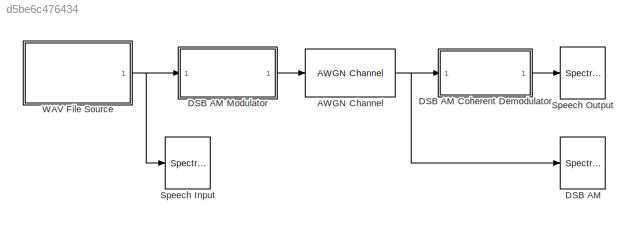
MODEL slx_d5be6c476434
KIND model
BLOCK [Reference] AWGN Channel  REF=commchan3/AWGN
Channel
  EbNodB = 10
  EsNodB = 10
  InputProcessing = Inherited (this choice will be removed - see release notes)
  Ports = [1, 1]
  Ps = 1
  SNRdB = 10
  SourceBlock = commchan3/AWGN\nChannel
  SourceType = AWGN Channel
  Tsym = 1
  UserDataPersistent = on
  bitsPerSym = 1
  noiseMode = Variance from mask
  seed = randseed
  variance = 0
BLOCK [SpectrumAnalyzer] DSB AM 
  Ports = [1]
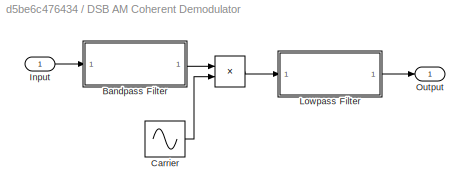
BLOCK [SubSystem] DSB AM Coherent Demodulator
  Ports = [1, 1]
  RequestExecContextInheritance = off
BLOCK [Product] DSB AM Coherent Demodulator/ 
  InputSameDT = off
  OutDataTypeStr = Inherit: Inherit via internal rule
  Ports = [2, 1]
  SaturateOnIntegerOverflow = off
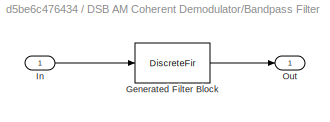
BLOCK [SubSystem] DSB AM Coherent Demodulator/Bandpass Filter
  CopyFcn = fdesignblkfcn(gcbh, {'CopyFcn'});
  DialogController = fdesignblkfcn
  InitFcn = fdesignblkfcn(gcbh, {'InitFcn'});
  Ports = [1, 1]
  RequestExecContextInheritance = off
  UserDataPersistent = on
BLOCK [DiscreteFir] DSB AM Coherent Demodulator/Bandpass Filter/Generated Filter Block
  Coefficients = [0.00058428545147761271 -0.00013603972061439462 -0.00011636896282705347 -9.6020462205143224e-05 -7.5366977499816384e-05 -5.4398616821042136e-05 -3.3359928242880811e-05 -1.21825025399601e-05 8.8798324694283751e-06 2.983282492642632e-05 5.0302230881884107e-05 7.0141925978349897e-05 8.8804947750613516e-05 0.00010597351091579465 0.00012092505429966959 0.0001332143962958192 0.0001420072975034165 0.0001...<+17638ch>
  InputProcessing = Columns as channels (frame based)
  Ports = [1, 1]
  Tag = BlockMethodSubSystem
BLOCK [Inport] DSB AM Coherent Demodulator/Bandpass Filter/In
  IconDisplay = Port number
BLOCK [Outport] DSB AM Coherent Demodulator/Bandpass Filter/Out
  IconDisplay = Port number
BLOCK [Sin] DSB AM Coherent Demodulator/Carrier
  Frequency = 40000*pi
  Ports = [0, 1]
  SampleTime = 1.25e-6
BLOCK [Inport] DSB AM Coherent Demodulator/Input
  IconDisplay = Port number
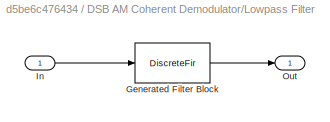
BLOCK [SubSystem] DSB AM Coherent Demodulator/Lowpass Filter
  CopyFcn = fdesignblkfcn(gcbh, {'CopyFcn'});
  DialogController = fdesignblkfcn
  InitFcn = fdesignblkfcn(gcbh, {'InitFcn'});
  Ports = [1, 1]
  RequestExecContextInheritance = off
  UserDataPersistent = on
BLOCK [DiscreteFir] DSB AM Coherent Demodulator/Lowpass Filter/Generated Filter Block
  Coefficients = [-0.00057859688975185738 -6.35256277029553e-05 -6.6899114889850493e-05 -7.0281827960871793e-05 -7.3755351620815581e-05 -7.7281620436689229e-05 -8.0955339246433964e-05 -8.4741014547221765e-05 -8.8716681501664857e-05 -9.2804956015786759e-05 -9.7011832885440233e-05 -0.00010117277677704965 -0.00010523527131728794 -0.00010911832545827151 -0.0001132200572242036 -0.00011870380142134807 -0.000122393833752...<+36113ch>
  InputProcessing = Columns as channels (frame based)
  Ports = [1, 1]
  Tag = BlockMethodSubSystem
BLOCK [Inport] DSB AM Coherent Demodulator/Lowpass Filter/In
  IconDisplay = Port number
BLOCK [Outport] DSB AM Coherent Demodulator/Lowpass Filter/Out
  IconDisplay = Port number
BLOCK [Outport] DSB AM Coherent Demodulator/Output
  IconDisplay = Port number
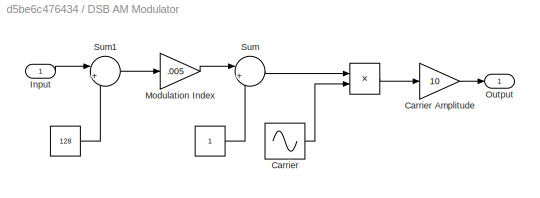
BLOCK [SubSystem] DSB AM Modulator
  Ports = [1, 1]
  RequestExecContextInheritance = off
BLOCK [Constant] DSB AM Modulator/ 
  Value = 128
BLOCK [Constant] DSB AM Modulator/  
BLOCK [Sin] DSB AM Modulator/Carrier
  Frequency = 40000*pi
  Ports = [0, 1]
  SampleTime = 1.25e-6
BLOCK [Gain] DSB AM Modulator/Carrier Amplitude
  Gain = 10
  OutDataTypeStr = Inherit: Inherit via internal rule
  ParamDataTypeStr = Inherit: Inherit via internal rule
  SaturateOnIntegerOverflow = off
BLOCK [Inport] DSB AM Modulator/Input
  IconDisplay = Port number
BLOCK [Gain] DSB AM Modulator/Modulation Index
  Gain = .005
  OutDataTypeStr = Inherit: Inherit via internal rule
  ParamDataTypeStr = Inherit: Inherit via internal rule
  SaturateOnIntegerOverflow = off
BLOCK [Outport] DSB AM Modulator/Output
  IconDisplay = Port number
BLOCK [Sum] DSB AM Modulator/Sum
  IconShape = round
  InputSameDT = off
  Inputs = |++
  OutDataTypeStr = Inherit: Inherit via internal rule
  Ports = [2, 1]
  SaturateOnIntegerOverflow = off
BLOCK [Sum] DSB AM Modulator/Sum1
  IconShape = round
  InputSameDT = off
  Inputs = |+-
  OutDataTypeStr = Inherit: Inherit via internal rule
  Ports = [2, 1]
  SaturateOnIntegerOverflow = off
BLOCK [SpectrumAnalyzer] Speech Input
  Ports = [1]
BLOCK [SpectrumAnalyzer] Speech Output
  Ports = [1]
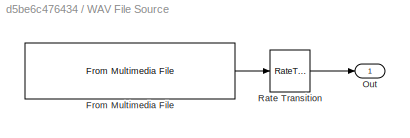
BLOCK [SubSystem] WAV File Source
  Ports = [0, 1]
  RequestExecContextInheritance = off
BLOCK [Reference] WAV File Source/From Multimedia File  REF=dspvision/From Multimedia File
  Ports = [0, 1]
  SourceBlock = dspvision/From Multimedia File
  SourceType = From Multimedia File
  audioDataType = uint8
  audioFrameSize = 1
  colorVideoFormat = Separate color signals
  computeAudioFrameSize = off
  dataOrg = Column-major
  fourcc = RGB
  inheritSampleTime = on
  inputFilename = <userpath>\Documents\Digital Communication Simulation using MATLAB and Simulink\Wav Files\Robbie8000.wav
  isIntensityVideo = off
  loop = on
  noAudioOutput = off
  numPlays = inf
  outSamplingMode = Sample based
  outputEOF = off
  outputStreams = Audio only
  userDefinedSampleTime = 1/30
  videoDataType = single
BLOCK [Outport] WAV File Source/Out
  IconDisplay = Port number
BLOCK [RateTransition] WAV File Source/Rate Transition
  OutPortSampleTime = 1.25e-6
NET AWGN Channel:1 -> DSB AM :1, DSB AM Coherent Demodulator:1
LINE DSB AM Coherent Demodulator/ :1 -> DSB AM Coherent Demodulator/Lowpass Filter:1
LINE DSB AM Coherent Demodulator/Bandpass Filter:1 -> DSB AM Coherent Demodulator/ :1
LINE DSB AM Coherent Demodulator/Carrier:1 -> DSB AM Coherent Demodulator/ :2
LINE DSB AM Coherent Demodulator/Input:1 -> DSB AM Coherent Demodulator/Bandpass Filter:1
LINE DSB AM Coherent Demodulator/Lowpass Filter:1 -> DSB AM Coherent Demodulator/Output:1
LINE DSB AM Coherent Demodulator:1 -> Speech Output:1
LINE DSB AM Modulator/  :1 -> DSB AM Modulator/Sum:2
NET DSB AM Modulator/ :1 -> DSB AM Modulator/Carrier Amplitude:1, DSB AM Modulator/Sum1:2
LINE DSB AM Modulator/Carrier Amplitude:1 -> DSB AM Modulator/Output:1
LINE DSB AM Modulator/Carrier:1 -> DSB AM Modulator/ :2
LINE DSB AM Modulator/Input:1 -> DSB AM Modulator/Sum1:1
LINE DSB AM Modulator/Modulation Index:1 -> DSB AM Modulator/Sum:1
LINE DSB AM Modulator/Sum1:1 -> DSB AM Modulator/Modulation Index:1
LINE DSB AM Modulator/Sum:1 -> DSB AM Modulator/ :1
LINE DSB AM Modulator:1 -> AWGN Channel:1
LINE WAV File Source/From Multimedia File:1 -> WAV File Source/Rate Transition:1
LINE WAV File Source/Rate Transition:1 -> WAV File Source/Out:1
NET WAV File Source:1 -> DSB AM Modulator:1, Speech Input:1
note: NET lines group one-source signal fan-out (src -> all destinations, sorted); 1:1 wires keep LINE
